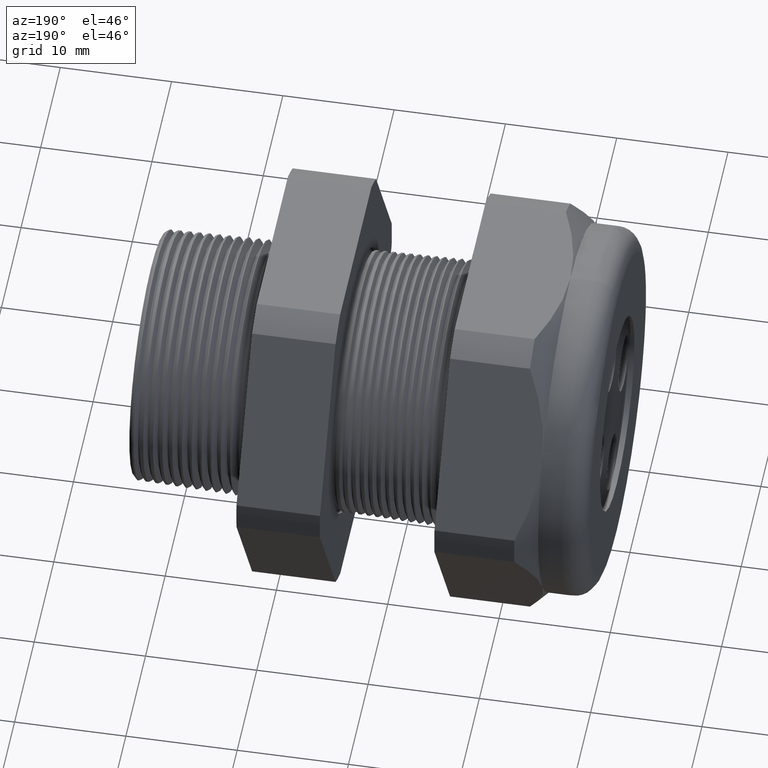
[diagram: clean part render]
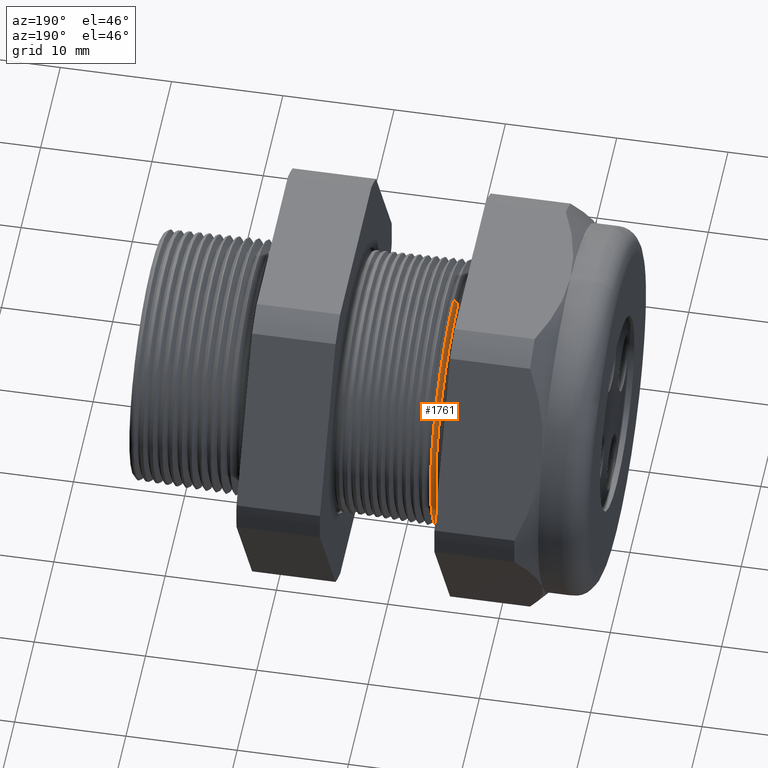
[diagram: same view with one face highlighted and labeled with its STEP entity id]
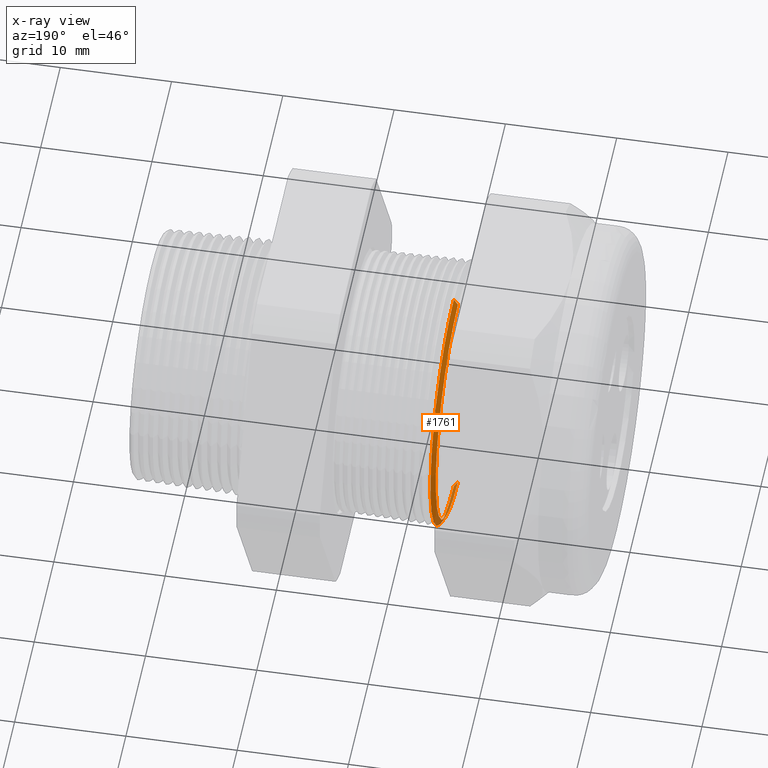
[diagram: x-ray of the same camera — body ghosted, the highlighted face saturated]
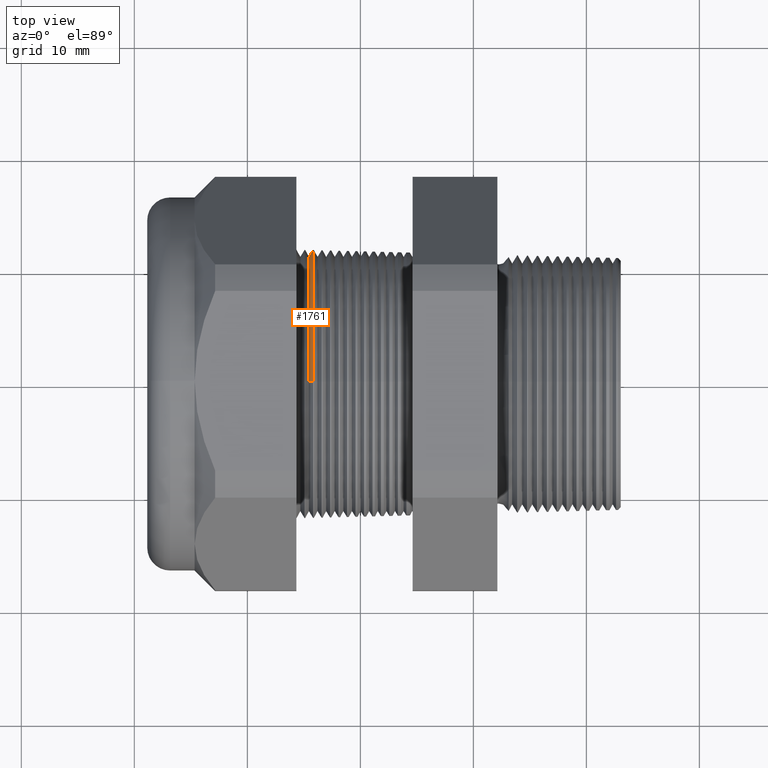
[diagram: same view with one face highlighted and labeled with its STEP entity id]
A machine part, auxiliary view. The second image highlights one B-rep face of the part: STEP entity #1761.
The next image is the same camera in x-ray: the body ghosted, the highlighted face saturated — about 12% of this face is hidden behind the body in this view.
A second angle (top view) of the same face is appended — the face is thin or edge-on in the first view.
In plain terms, the highlighted conical surface has half-angle 58.5 deg.
Its self-contained STEP definition (entity closure, byte-faithful):
#1602 = DIRECTION ( 'NONE',  ( 0.0000000000000000000, 0.0000000000000000000, -1.000000000000000000 ) ) ;
#1756 = VERTEX_POINT ( 'NONE', #4088 ) ;
#1757 = ORIENTED_EDGE ( 'NONE', *, *, #1786, .T. ) ;
#1758 = ORIENTED_EDGE ( 'NONE', *, *, #1760, .T. ) ;
#1759 = EDGE_LOOP ( 'NONE', ( #1758, #1757, #1789, #1769 ) ) ;
#1760 = EDGE_CURVE ( 'NONE', #1766, #1756, #4086, .T. ) ;
#1761 = ADVANCED_FACE ( 'NONE', ( #4087 ), #4081, .T. ) ;
#1766 = VERTEX_POINT ( 'NONE', #4130 ) ;
#1769 = ORIENTED_EDGE ( 'NONE', *, *, #1776, .F. ) ;
#1776 = EDGE_CURVE ( 'NONE', #1766, #1787, #4114, .T. ) ;
#1786 = EDGE_CURVE ( 'NONE', #1756, #1788, #4157, .T. ) ;
#1787 = VERTEX_POINT ( 'NONE', #4153 ) ;
#1788 = VERTEX_POINT ( 'NONE', #4152 ) ;
#1789 = ORIENTED_EDGE ( 'NONE', *, *, #1791, .T. ) ;
#1791 = EDGE_CURVE ( 'NONE', #1788, #1787, #4145, .T. ) ;
#3888 = DIRECTION ( 'NONE',  ( -1.000000000000000000, 0.0000000000000000000, 0.0000000000000000000 ) ) ;
#4081 = CONICAL_SURFACE ( 'NONE', #4141, 0.4446307351718083400, 1.021017612416699200 ) ;
#4082 = DIRECTION ( 'NONE',  ( 0.0000000000000000000, 0.0000000000000000000, -1.000000000000000000 ) ) ;
#4083 = DIRECTION ( 'NONE',  ( 1.000000000000000000, 0.0000000000000000000, 0.0000000000000000000 ) ) ;
#4084 = CARTESIAN_POINT ( 'NONE',  ( -0.9665405736958172500, 0.0000000000000000000, 0.0000000000000000000 ) ) ;
#4085 = AXIS2_PLACEMENT_3D ( 'NONE', #4084, #4083, #4082 ) ;
#4086 = CIRCLE ( 'NONE', #4085, 0.4446307351718083400 ) ;
#4087 = FACE_OUTER_BOUND ( 'NONE', #1759, .T. ) ;
#4088 = CARTESIAN_POINT ( 'NONE',  ( -0.9665405736958172500, 0.0000000000000000000, 0.4446307351718083400 ) ) ;
#4111 = DIRECTION ( 'NONE',  ( 0.5224985647159348100, 0.0000000000000000000, -0.8526401643541007300 ) ) ;
#4112 = VECTOR ( 'NONE', #4111, 39.37007874015748900 ) ;
#4113 = CARTESIAN_POINT ( 'NONE',  ( -0.9665405736958172500, 0.0000000000000000000, -0.4446307351718083400 ) ) ;
#4114 = LINE ( 'NONE', #4113, #4112 ) ;
#4130 = CARTESIAN_POINT ( 'NONE',  ( -0.9665405736958172500, 5.595618357477494700E-017, -0.4446307351718083400 ) ) ;
#4138 = DIRECTION ( 'NONE',  ( 0.0000000000000000000, 0.0000000000000000000, -1.000000000000000000 ) ) ;
#4139 = DIRECTION ( 'NONE',  ( 1.000000000000000000, 0.0000000000000000000, 0.0000000000000000000 ) ) ;
#4140 = CARTESIAN_POINT ( 'NONE',  ( -0.9665405736958172500, 0.0000000000000000000, 0.0000000000000000000 ) ) ;
#4141 = AXIS2_PLACEMENT_3D ( 'NONE', #4140, #4139, #4138 ) ;
#4143 = CARTESIAN_POINT ( 'NONE',  ( -0.9519311390013799300, 0.0000000000000000000, 0.0000000000000000000 ) ) ;
#4144 = AXIS2_PLACEMENT_3D ( 'NONE', #4143, #3888, #1602 ) ;
#4145 = CIRCLE ( 'NONE', #4144, 0.4684711658259259600 ) ;
#4152 = CARTESIAN_POINT ( 'NONE',  ( -0.9519311390013799300, 0.0000000000000000000, 0.4684711658259260200 ) ) ;
#4153 = CARTESIAN_POINT ( 'NONE',  ( -0.9519311390013799300, 5.737117137215492100E-017, -0.4684711658259260200 ) ) ;
#4154 = DIRECTION ( 'NONE',  ( 0.5224985647159348100, 1.044183048100722500E-016, 0.8526401643541007300 ) ) ;
#4155 = VECTOR ( 'NONE', #4154, 39.37007874015748900 ) ;
#4156 = CARTESIAN_POINT ( 'NONE',  ( -0.9665405736958172500, 5.445156066306895900E-017, 0.4446307351718083400 ) ) ;
#4157 = LINE ( 'NONE', #4156, #4155 ) ;